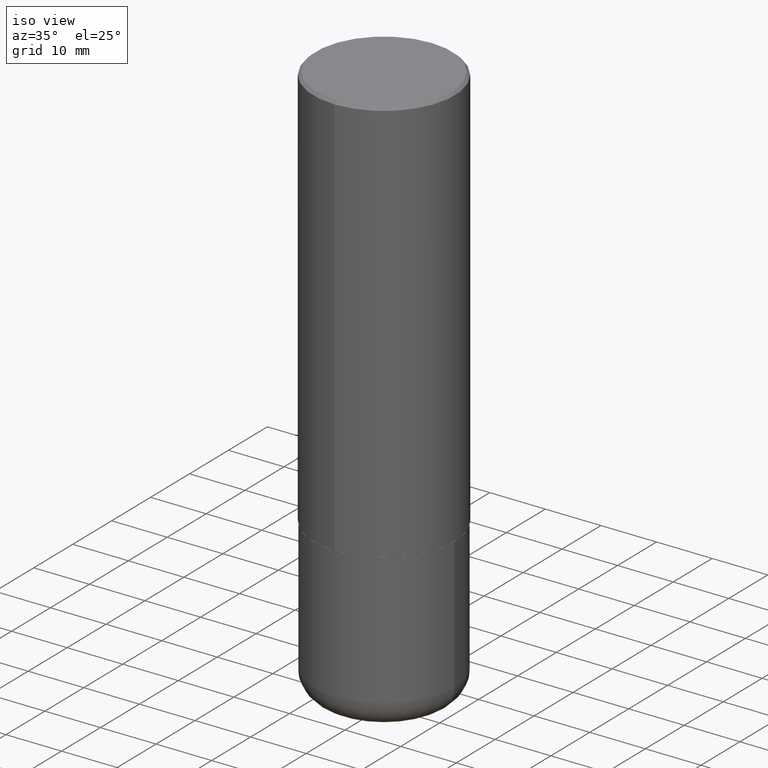
[diagram: clean part render]
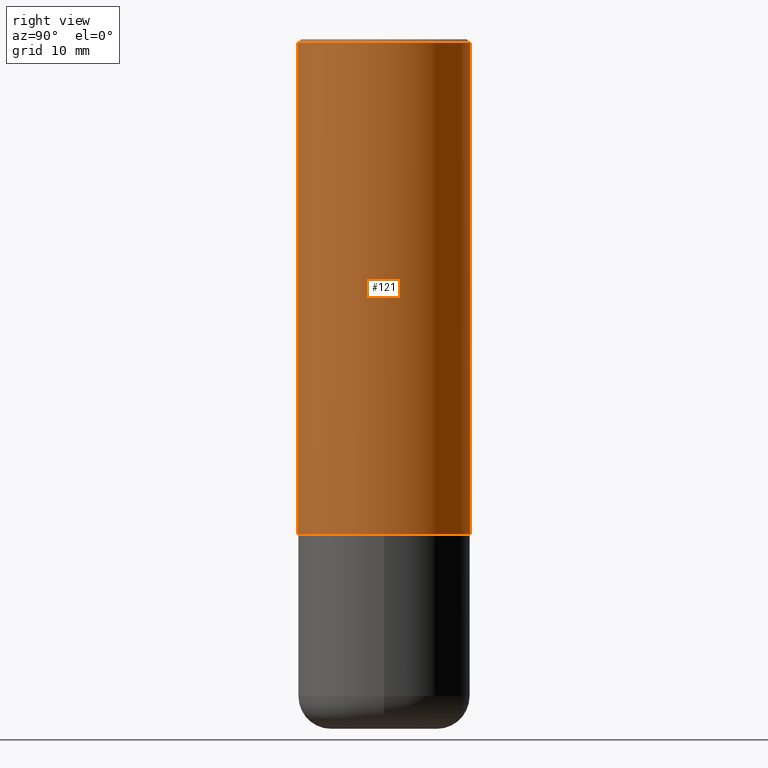
[diagram: tour spotlight — one face highlighted and labeled with its STEP entity id]
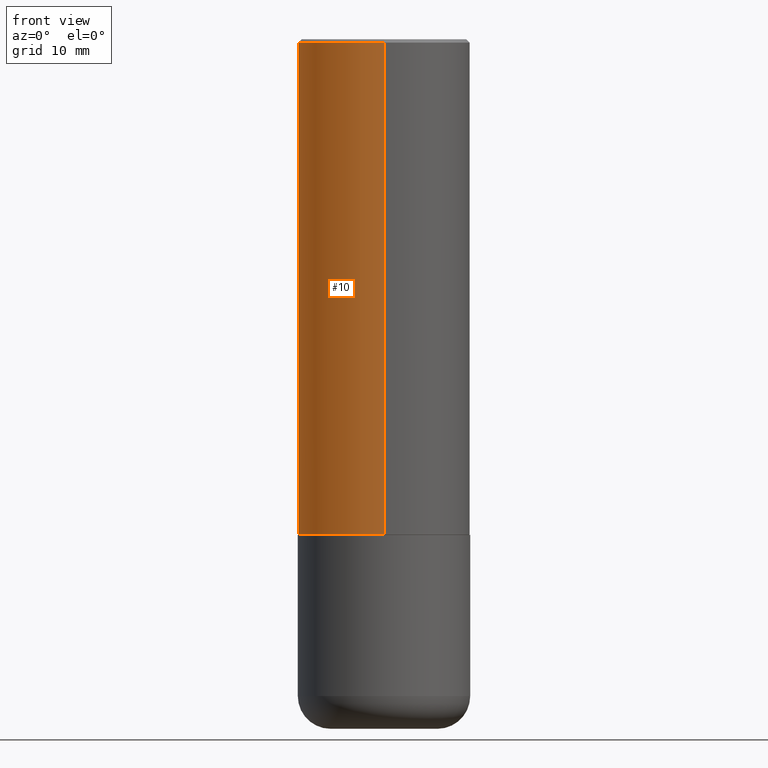
[diagram: tour spotlight — one face highlighted and labeled with its STEP entity id]
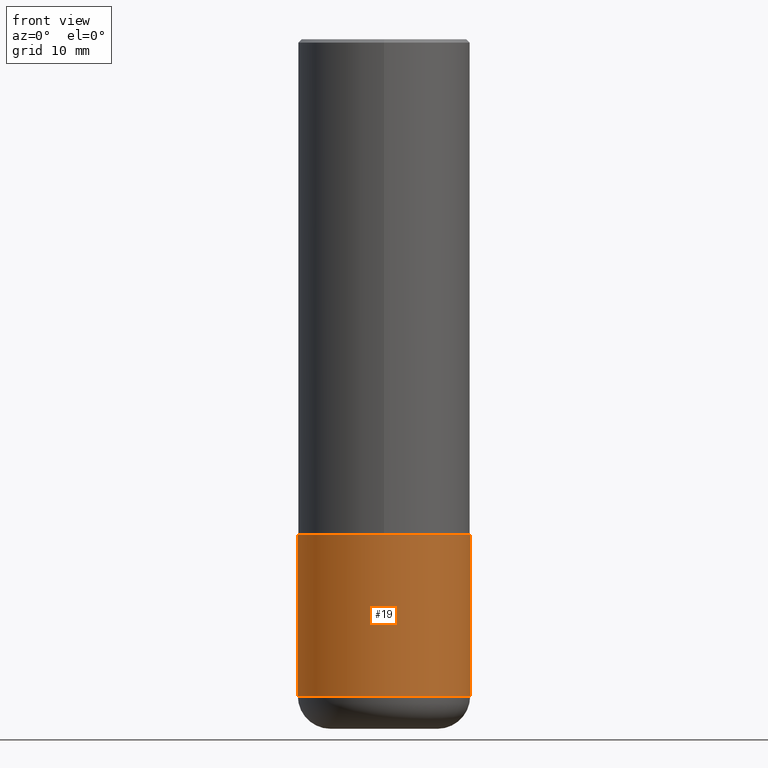
[diagram: tour spotlight — one face highlighted and labeled with its STEP entity id]
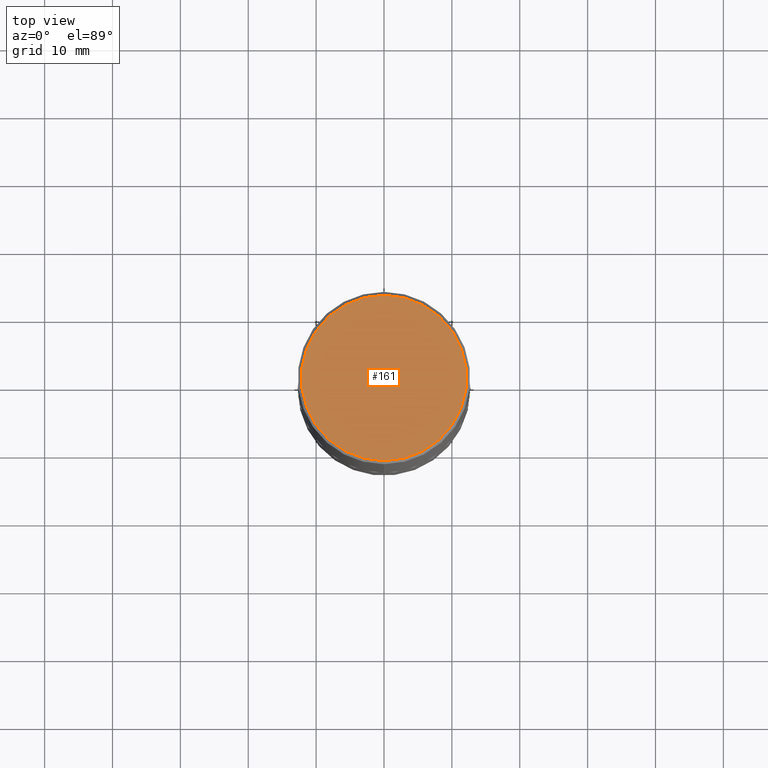
[diagram: tour spotlight — one face highlighted and labeled with its STEP entity id]
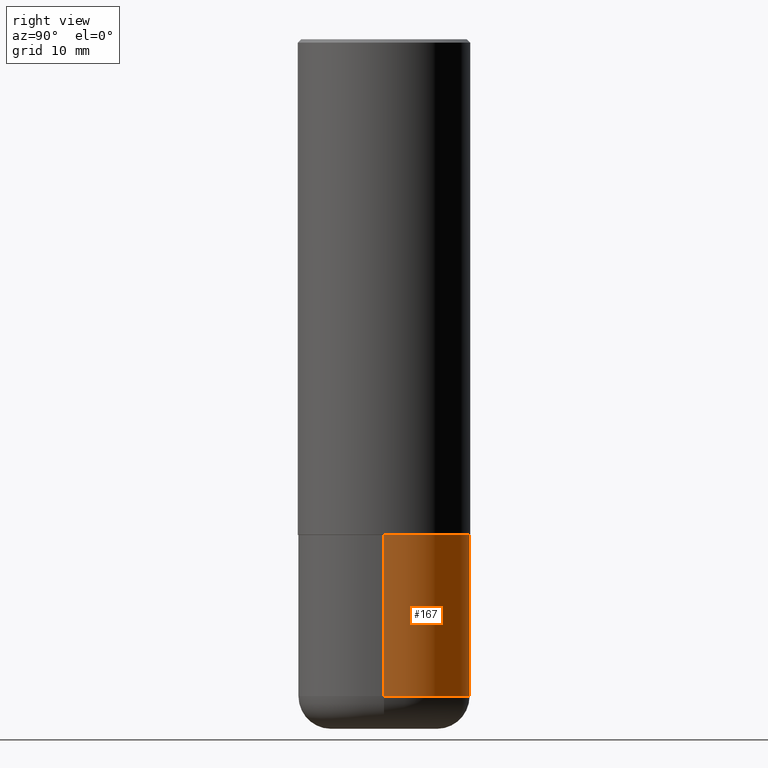
[diagram: tour spotlight — one face highlighted and labeled with its STEP entity id]
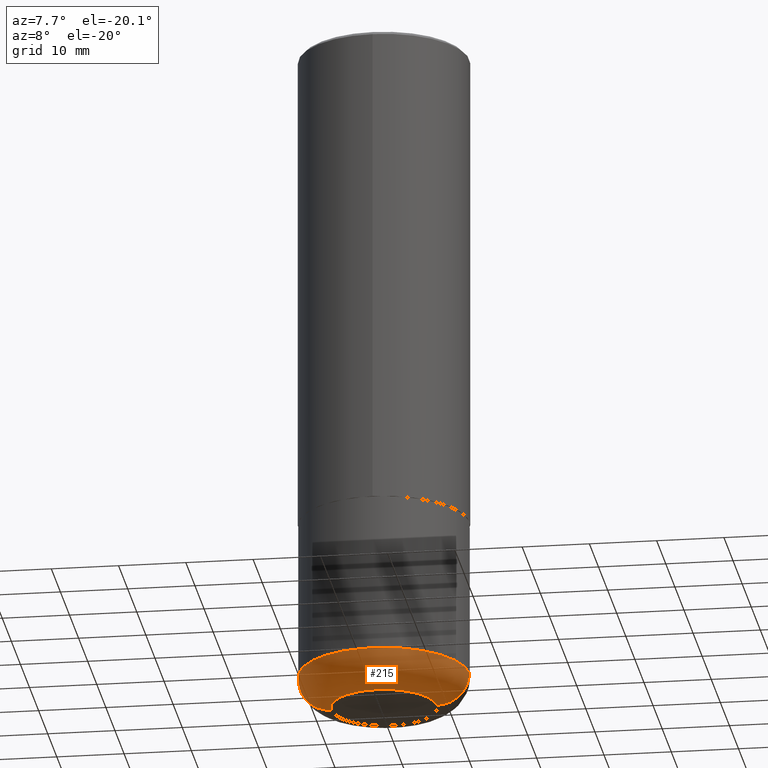
[diagram: tour spotlight — one face highlighted and labeled with its STEP entity id]
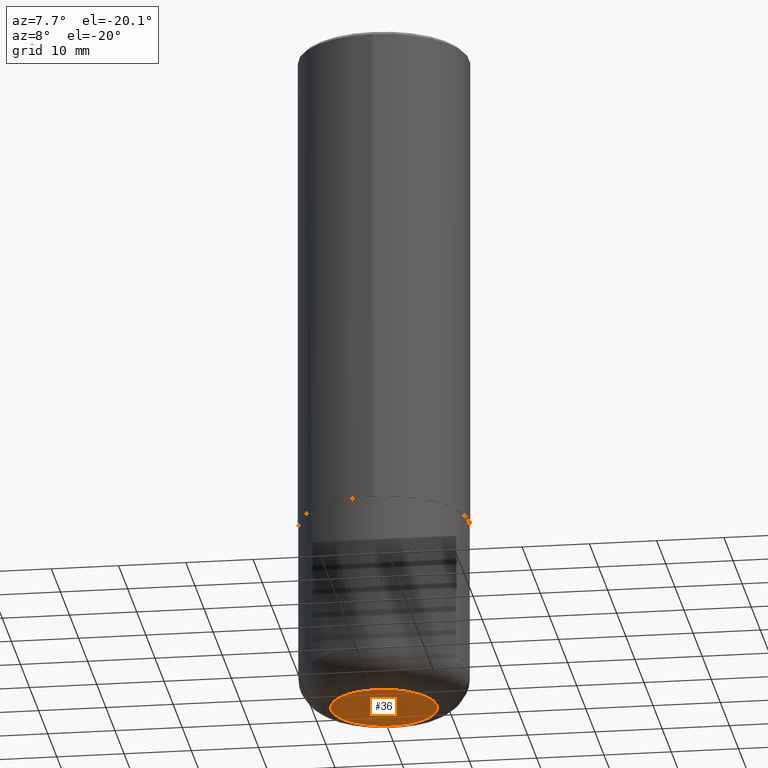
[diagram: tour spotlight — one face highlighted and labeled with its STEP entity id]
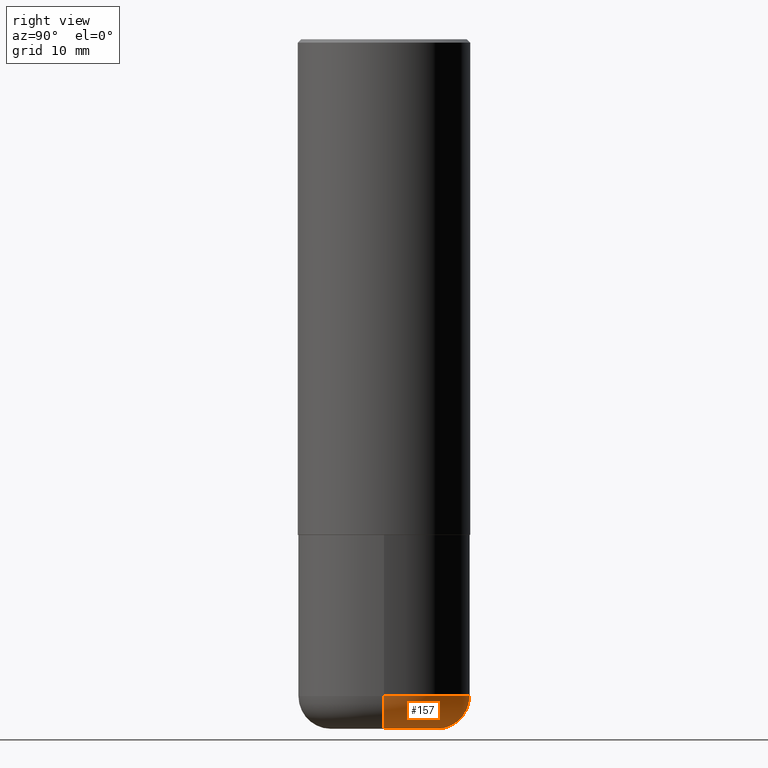
[diagram: tour spotlight — one face highlighted and labeled with its STEP entity id]
A machine part: a face-by-face anatomy tour. The part has 14 B-rep faces; the first image is the clean iso view, then the 8 largest visible faces are spotlighted one at a time (largest first), each with its STEP entity span.

Face 1 — right view, entity #121. In plain terms, the highlighted cylindrical surface (partial cylindrical patch) has radius 12.7 mm, axis along (-0, 0, 1).
Definition (entity closure, byte-faithful):
#4 = FACE_OUTER_BOUND ( 'NONE', #118, .T. ) ;
#5 = ORIENTED_EDGE ( 'NONE', *, *, #134, .F. ) ;
#7 = ORIENTED_EDGE ( 'NONE', *, *, #237, .T. ) ;
#22 = CARTESIAN_POINT ( 'NONE',  ( 7.027459789203708394E-29, -1.003568815996185455E-14, -2.874000000000000110 ) ) ;
#27 = EDGE_CURVE ( 'NONE', #187, #400, #97, .T. ) ;
#29 = CIRCLE ( 'NONE', #149, 0.5000000000000001110 ) ;
#38 = CARTESIAN_POINT ( 'NONE',  ( 3.552713678800538006E-15, 0.4999999999999903411, -2.874000000000001442 ) ) ;
#51 = ORIENTED_EDGE ( 'NONE', *, *, #27, .T. ) ;
#87 = VERTEX_POINT ( 'NONE', #384 ) ;
#92 = ORIENTED_EDGE ( 'NONE', *, *, #333, .F. ) ;
#94 = CIRCLE ( 'NONE', #412, 0.5000000000000003331 ) ;
#97 = LINE ( 'NONE', #320, #234 ) ;
#101 = DIRECTION ( 'NONE',  ( -2.445184338623420072E-29, 3.491888712582412558E-15, 1.000000000000000000 ) ) ;
#118 = EDGE_LOOP ( 'NONE', ( #7, #51, #5, #92 ) ) ;
#121 = ADVANCED_FACE ( 'NONE', ( #4 ), #338, .T. ) ;
#133 = DIRECTION ( 'NONE',  ( -6.982962677686265922E-15, -1.000000000000000000, 3.491888712582411769E-15 ) ) ;
#134 = EDGE_CURVE ( 'NONE', #277, #400, #29, .T. ) ;
#149 = AXIS2_PLACEMENT_3D ( 'NONE', #387, #300, #265 ) ;
#151 = CARTESIAN_POINT ( 'NONE',  ( -3.430248998885765387E-15, -0.5000000000000001110, -0.01999999999999835937 ) ) ;
#179 = DIRECTION ( 'NONE',  ( -6.982962677686265922E-15, -1.000000000000000000, 3.278217592397113496E-15 ) ) ;
#187 = VERTEX_POINT ( 'NONE', #38 ) ;
#216 = CARTESIAN_POINT ( 'NONE',  ( 3.491481338843133750E-15, 0.5000000000000000000, -0.02000000000000185310 ) ) ;
#234 = VECTOR ( 'NONE', #101, 39.37007874015748143 ) ;
#237 = EDGE_CURVE ( 'NONE', #87, #187, #94, .T. ) ;
#265 = DIRECTION ( 'NONE',  ( -6.982962677686265133E-15, -1.000000000000000000, 3.491643216902135619E-15 ) ) ;
#267 = DIRECTION ( 'NONE',  ( -2.445184338623419792E-29, 3.491888712582412164E-15, 1.000000000000000000 ) ) ;
#277 = VERTEX_POINT ( 'NONE', #151 ) ;
#300 = DIRECTION ( 'NONE',  ( -2.445184338623419792E-29, 3.491888712582412164E-15, 1.000000000000000000 ) ) ;
#301 = CARTESIAN_POINT ( 'NONE',  ( 0.000000000000000000, 0.000000000000000000, 0.000000000000000000 ) ) ;
#303 = DIRECTION ( 'NONE',  ( -2.445184338623419792E-29, 3.491888712582412164E-15, 1.000000000000000000 ) ) ;
#310 = CARTESIAN_POINT ( 'NONE',  ( -3.491481338843134539E-15, -0.5000000000000002220, 1.745944356291206674E-15 ) ) ;
#314 = DIRECTION ( 'NONE',  ( -2.445184338623420072E-29, 3.491888712582412558E-15, 1.000000000000000000 ) ) ;
#320 = CARTESIAN_POINT ( 'NONE',  ( 3.552713678800501718E-15, 0.5000000000000002220, -1.745944356291206674E-15 ) ) ;
#333 = EDGE_CURVE ( 'NONE', #87, #277, #399, .T. ) ;
#338 = CYLINDRICAL_SURFACE ( 'NONE', #396, 0.5000000000000002220 ) ;
#384 = CARTESIAN_POINT ( 'NONE',  ( -3.491481338843065119E-15, -0.5000000000000103251, -2.873999999999998334 ) ) ;
#387 = CARTESIAN_POINT ( 'NONE',  ( 4.890368677246865823E-31, -6.983777425164860418E-17, -0.02000000000000010797 ) ) ;
#396 = AXIS2_PLACEMENT_3D ( 'NONE', #301, #267, #133 ) ;
#399 = LINE ( 'NONE', #310, #417 ) ;
#400 = VERTEX_POINT ( 'NONE', #216 ) ;
#412 = AXIS2_PLACEMENT_3D ( 'NONE', #22, #303, #179 ) ;
#417 = VECTOR ( 'NONE', #314, 39.37007874015748143 ) ;

Face 2 — front view, entity #10. In plain terms, the highlighted cylindrical surface (partial cylindrical patch) has radius 12.7 mm, axis along (-0, 0, 1).
Definition (entity closure, byte-faithful):
#10 = ADVANCED_FACE ( 'NONE', ( #313 ), #322, .T. ) ;
#15 = CARTESIAN_POINT ( 'NONE',  ( 4.890368677246865823E-31, -6.983777425164860418E-17, -0.02000000000000010797 ) ) ;
#27 = EDGE_CURVE ( 'NONE', #187, #400, #97, .T. ) ;
#30 = CARTESIAN_POINT ( 'NONE',  ( 0.000000000000000000, 0.000000000000000000, 0.000000000000000000 ) ) ;
#38 = CARTESIAN_POINT ( 'NONE',  ( 3.552713678800538006E-15, 0.4999999999999903411, -2.874000000000001442 ) ) ;
#87 = VERTEX_POINT ( 'NONE', #384 ) ;
#97 = LINE ( 'NONE', #320, #234 ) ;
#101 = DIRECTION ( 'NONE',  ( -2.445184338623420072E-29, 3.491888712582412558E-15, 1.000000000000000000 ) ) ;
#112 = DIRECTION ( 'NONE',  ( -2.445184338623419792E-29, 3.491888712582412164E-15, 1.000000000000000000 ) ) ;
#142 = AXIS2_PLACEMENT_3D ( 'NONE', #210, #340, #282 ) ;
#146 = ORIENTED_EDGE ( 'NONE', *, *, #27, .F. ) ;
#151 = CARTESIAN_POINT ( 'NONE',  ( -3.430248998885765387E-15, -0.5000000000000001110, -0.01999999999999835937 ) ) ;
#152 = ORIENTED_EDGE ( 'NONE', *, *, #370, .F. ) ;
#163 = CIRCLE ( 'NONE', #142, 0.5000000000000003331 ) ;
#184 = ORIENTED_EDGE ( 'NONE', *, *, #333, .T. ) ;
#187 = VERTEX_POINT ( 'NONE', #38 ) ;
#194 = DIRECTION ( 'NONE',  ( -2.445184338623419792E-29, 3.491888712582412164E-15, 1.000000000000000000 ) ) ;
#198 = AXIS2_PLACEMENT_3D ( 'NONE', #30, #194, #225 ) ;
#210 = CARTESIAN_POINT ( 'NONE',  ( 7.027459789203708394E-29, -1.003568815996185455E-14, -2.874000000000000110 ) ) ;
#216 = CARTESIAN_POINT ( 'NONE',  ( 3.491481338843133750E-15, 0.5000000000000000000, -0.02000000000000185310 ) ) ;
#225 = DIRECTION ( 'NONE',  ( -6.982962677686265922E-15, -1.000000000000000000, 3.491888712582411769E-15 ) ) ;
#234 = VECTOR ( 'NONE', #101, 39.37007874015748143 ) ;
#235 = AXIS2_PLACEMENT_3D ( 'NONE', #15, #112, #351 ) ;
#252 = CIRCLE ( 'NONE', #235, 0.5000000000000001110 ) ;
#270 = EDGE_CURVE ( 'NONE', #187, #87, #163, .T. ) ;
#277 = VERTEX_POINT ( 'NONE', #151 ) ;
#282 = DIRECTION ( 'NONE',  ( -6.982962677686265922E-15, -1.000000000000000000, 3.278217592397113496E-15 ) ) ;
#310 = CARTESIAN_POINT ( 'NONE',  ( -3.491481338843134539E-15, -0.5000000000000002220, 1.745944356291206674E-15 ) ) ;
#311 = EDGE_LOOP ( 'NONE', ( #146, #366, #184, #152 ) ) ;
#313 = FACE_OUTER_BOUND ( 'NONE', #311, .T. ) ;
#314 = DIRECTION ( 'NONE',  ( -2.445184338623420072E-29, 3.491888712582412558E-15, 1.000000000000000000 ) ) ;
#320 = CARTESIAN_POINT ( 'NONE',  ( 3.552713678800501718E-15, 0.5000000000000002220, -1.745944356291206674E-15 ) ) ;
#322 = CYLINDRICAL_SURFACE ( 'NONE', #198, 0.5000000000000002220 ) ;
#333 = EDGE_CURVE ( 'NONE', #87, #277, #399, .T. ) ;
#340 = DIRECTION ( 'NONE',  ( -2.445184338623419792E-29, 3.491888712582412164E-15, 1.000000000000000000 ) ) ;
#351 = DIRECTION ( 'NONE',  ( -6.982962677686265133E-15, -1.000000000000000000, 3.491643216902135619E-15 ) ) ;
#366 = ORIENTED_EDGE ( 'NONE', *, *, #270, .T. ) ;
#370 = EDGE_CURVE ( 'NONE', #400, #277, #252, .T. ) ;
#384 = CARTESIAN_POINT ( 'NONE',  ( -3.491481338843065119E-15, -0.5000000000000103251, -2.873999999999998334 ) ) ;
#399 = LINE ( 'NONE', #310, #417 ) ;
#400 = VERTEX_POINT ( 'NONE', #216 ) ;
#417 = VECTOR ( 'NONE', #314, 39.37007874015748143 ) ;

Face 3 — front view, entity #19. In plain terms, the highlighted cylindrical surface (partial cylindrical patch) has radius 12.7 mm, axis along (-0, 0, 1).
Definition (entity closure, byte-faithful):
#6 = AXIS2_PLACEMENT_3D ( 'NONE', #39, #392, #105 ) ;
#19 = ADVANCED_FACE ( 'NONE', ( #127 ), #257, .T. ) ;
#26 = LINE ( 'NONE', #35, #342 ) ;
#33 = DIRECTION ( 'NONE',  ( -2.445468806185136877E-29, 3.491481338843145188E-15, 1.000000000000000000 ) ) ;
#35 = CARTESIAN_POINT ( 'NONE',  ( 0.5000000000000000000, -3.491481338843133355E-15, 2.438088387897967896E-29 ) ) ;
#39 = CARTESIAN_POINT ( 'NONE',  ( 9.317236151565370389E-29, -1.330254390099238573E-14, -3.810000000000000053 ) ) ;
#44 = VERTEX_POINT ( 'NONE', #360 ) ;
#64 = EDGE_CURVE ( 'NONE', #175, #113, #227, .T. ) ;
#76 = EDGE_CURVE ( 'NONE', #409, #44, #26, .T. ) ;
#79 = DIRECTION ( 'NONE',  ( 1.000000000000000000, -6.982962677686266711E-15, 0.000000000000000000 ) ) ;
#83 = ORIENTED_EDGE ( 'NONE', *, *, #76, .T. ) ;
#99 = CIRCLE ( 'NONE', #288, 0.5000000000000000000 ) ;
#105 = DIRECTION ( 'NONE',  ( 1.000000000000000000, -6.982962677686266711E-15, 0.000000000000000000 ) ) ;
#108 = AXIS2_PLACEMENT_3D ( 'NONE', #413, #196, #232 ) ;
#113 = VERTEX_POINT ( 'NONE', #136 ) ;
#125 = CARTESIAN_POINT ( 'NONE',  ( -0.5000000000000000000, 3.552713678800500929E-15, -2.459467545127452891E-29 ) ) ;
#127 = FACE_OUTER_BOUND ( 'NONE', #379, .T. ) ;
#136 = CARTESIAN_POINT ( 'NONE',  ( -0.5000000000000000000, -8.117562696282713489E-15, -2.875000000000000000 ) ) ;
#162 = VECTOR ( 'NONE', #361, 39.37007874015748143 ) ;
#175 = VERTEX_POINT ( 'NONE', #332 ) ;
#178 = EDGE_CURVE ( 'NONE', #175, #409, #294, .T. ) ;
#196 = DIRECTION ( 'NONE',  ( -2.445468806185136597E-29, 3.491481338843145583E-15, 1.000000000000000000 ) ) ;
#227 = LINE ( 'NONE', #125, #162 ) ;
#232 = DIRECTION ( 'NONE',  ( 1.000000000000000000, -6.982962677686266711E-15, 4.876176775795935793E-29 ) ) ;
#240 = DIRECTION ( 'NONE',  ( -2.445468806185136597E-29, 3.491481338843145583E-15, 1.000000000000000000 ) ) ;
#248 = ORIENTED_EDGE ( 'NONE', *, *, #178, .T. ) ;
#249 = CARTESIAN_POINT ( 'NONE',  ( 7.030722817782267716E-29, -1.003800884917404311E-14, -2.875000000000000000 ) ) ;
#257 = CYLINDRICAL_SURFACE ( 'NONE', #108, 0.5000000000000000000 ) ;
#279 = ORIENTED_EDGE ( 'NONE', *, *, #64, .F. ) ;
#288 = AXIS2_PLACEMENT_3D ( 'NONE', #249, #240, #79 ) ;
#294 = CIRCLE ( 'NONE', #6, 0.5000000000000000000 ) ;
#332 = CARTESIAN_POINT ( 'NONE',  ( -0.4999999999999998335, -9.749830222191884801E-15, -3.810000000000000053 ) ) ;
#342 = VECTOR ( 'NONE', #33, 39.37007874015748143 ) ;
#360 = CARTESIAN_POINT ( 'NONE',  ( 0.5000000000000000000, -1.352949018801717646E-14, -2.875000000000000000 ) ) ;
#361 = DIRECTION ( 'NONE',  ( -2.445468806185136877E-29, 3.491481338843145188E-15, 1.000000000000000000 ) ) ;
#373 = ORIENTED_EDGE ( 'NONE', *, *, #374, .F. ) ;
#374 = EDGE_CURVE ( 'NONE', #113, #44, #99, .T. ) ;
#379 = EDGE_LOOP ( 'NONE', ( #279, #248, #83, #373 ) ) ;
#385 = CARTESIAN_POINT ( 'NONE',  ( 0.4999999999999998335, -1.679402523983551751E-14, -3.810000000000000053 ) ) ;
#392 = DIRECTION ( 'NONE',  ( -2.445468806185136597E-29, 3.491481338843145583E-15, 1.000000000000000000 ) ) ;
#409 = VERTEX_POINT ( 'NONE', #385 ) ;
#413 = CARTESIAN_POINT ( 'NONE',  ( 0.000000000000000000, 0.000000000000000000, 0.000000000000000000 ) ) ;

Face 4 — top view, entity #161. In plain terms, the highlighted planar face has unit normal (0, -0, -1).
Definition (entity closure, byte-faithful):
#8 = DIRECTION ( 'NONE',  ( 2.445184338623419231E-29, -3.491888712582412558E-15, -1.000000000000000000 ) ) ;
#14 = ORIENTED_EDGE ( 'NONE', *, *, #165, .T. ) ;
#37 = CARTESIAN_POINT ( 'NONE',  ( 3.857019660645771864E-45, -5.508085097911161414E-31, -1.577394227388672604E-16 ) ) ;
#40 = DIRECTION ( 'NONE',  ( -6.982962677686265922E-15, -1.000000000000000000, 3.491888712582412164E-15 ) ) ;
#42 = AXIS2_PLACEMENT_3D ( 'NONE', #43, #8, #390 ) ;
#43 = CARTESIAN_POINT ( 'NONE',  ( 3.351822085289409125E-15, 0.4800000000000002043, -1.754976293408992439E-15 ) ) ;
#73 = PLANE ( 'NONE',  #42 ) ;
#80 = VERTEX_POINT ( 'NONE', #223 ) ;
#89 = EDGE_LOOP ( 'NONE', ( #284, #14 ) ) ;
#107 = EDGE_CURVE ( 'NONE', #214, #80, #191, .T. ) ;
#131 = DIRECTION ( 'NONE',  ( -6.982962677686265922E-15, -1.000000000000000000, 3.491888712582412164E-15 ) ) ;
#161 = ADVANCED_FACE ( 'NONE', ( #336 ), #73, .F. ) ;
#165 = EDGE_CURVE ( 'NONE', #80, #214, #316, .T. ) ;
#170 = DIRECTION ( 'NONE',  ( -2.445184338623419792E-29, 3.491888712582412164E-15, 1.000000000000000000 ) ) ;
#191 = CIRCLE ( 'NONE', #330, 0.4800000000000002043 ) ;
#202 = CARTESIAN_POINT ( 'NONE',  ( 3.857019660645771864E-45, -5.508085097911161414E-31, -1.577394227388672604E-16 ) ) ;
#214 = VERTEX_POINT ( 'NONE', #242 ) ;
#223 = CARTESIAN_POINT ( 'NONE',  ( -3.361644018908050450E-15, -0.4800000000000002043, 1.518367159300691351E-15 ) ) ;
#233 = DIRECTION ( 'NONE',  ( -2.445184338623419792E-29, 3.491888712582412164E-15, 1.000000000000000000 ) ) ;
#242 = CARTESIAN_POINT ( 'NONE',  ( 3.421651712066271635E-15, 0.4800000000000002043, -1.833846004778425872E-15 ) ) ;
#266 = AXIS2_PLACEMENT_3D ( 'NONE', #202, #170, #40 ) ;
#284 = ORIENTED_EDGE ( 'NONE', *, *, #107, .T. ) ;
#316 = CIRCLE ( 'NONE', #266, 0.4800000000000002043 ) ;
#330 = AXIS2_PLACEMENT_3D ( 'NONE', #37, #233, #131 ) ;
#336 = FACE_OUTER_BOUND ( 'NONE', #89, .T. ) ;
#390 = DIRECTION ( 'NONE',  ( 6.982962677686265922E-15, 1.000000000000000000, -3.491888712582412558E-15 ) ) ;

Face 5 — right view, entity #167. In plain terms, the highlighted cylindrical surface (partial cylindrical patch) has radius 12.7 mm, axis along (-0, 0, 1).
Definition (entity closure, byte-faithful):
#26 = LINE ( 'NONE', #35, #342 ) ;
#33 = DIRECTION ( 'NONE',  ( -2.445468806185136877E-29, 3.491481338843145188E-15, 1.000000000000000000 ) ) ;
#35 = CARTESIAN_POINT ( 'NONE',  ( 0.5000000000000000000, -3.491481338843133355E-15, 2.438088387897967896E-29 ) ) ;
#44 = VERTEX_POINT ( 'NONE', #360 ) ;
#48 = AXIS2_PLACEMENT_3D ( 'NONE', #260, #159, #290 ) ;
#64 = EDGE_CURVE ( 'NONE', #175, #113, #227, .T. ) ;
#69 = DIRECTION ( 'NONE',  ( -2.445468806185136597E-29, 3.491481338843145583E-15, 1.000000000000000000 ) ) ;
#76 = EDGE_CURVE ( 'NONE', #409, #44, #26, .T. ) ;
#78 = ORIENTED_EDGE ( 'NONE', *, *, #76, .F. ) ;
#81 = EDGE_CURVE ( 'NONE', #409, #175, #220, .T. ) ;
#85 = CIRCLE ( 'NONE', #262, 0.5000000000000000000 ) ;
#102 = CARTESIAN_POINT ( 'NONE',  ( 0.000000000000000000, 0.000000000000000000, 0.000000000000000000 ) ) ;
#113 = VERTEX_POINT ( 'NONE', #136 ) ;
#125 = CARTESIAN_POINT ( 'NONE',  ( -0.5000000000000000000, 3.552713678800500929E-15, -2.459467545127452891E-29 ) ) ;
#136 = CARTESIAN_POINT ( 'NONE',  ( -0.5000000000000000000, -8.117562696282713489E-15, -2.875000000000000000 ) ) ;
#140 = CYLINDRICAL_SURFACE ( 'NONE', #176, 0.5000000000000000000 ) ;
#144 = ORIENTED_EDGE ( 'NONE', *, *, #324, .F. ) ;
#159 = DIRECTION ( 'NONE',  ( -2.445468806185136597E-29, 3.491481338843145583E-15, 1.000000000000000000 ) ) ;
#162 = VECTOR ( 'NONE', #361, 39.37007874015748143 ) ;
#167 = ADVANCED_FACE ( 'NONE', ( #339 ), #140, .T. ) ;
#169 = ORIENTED_EDGE ( 'NONE', *, *, #81, .T. ) ;
#172 = DIRECTION ( 'NONE',  ( -2.445468806185136597E-29, 3.491481338843145583E-15, 1.000000000000000000 ) ) ;
#175 = VERTEX_POINT ( 'NONE', #332 ) ;
#176 = AXIS2_PLACEMENT_3D ( 'NONE', #102, #69, #334 ) ;
#218 = CARTESIAN_POINT ( 'NONE',  ( 7.030722817782267716E-29, -1.003800884917404311E-14, -2.875000000000000000 ) ) ;
#220 = CIRCLE ( 'NONE', #48, 0.5000000000000000000 ) ;
#227 = LINE ( 'NONE', #125, #162 ) ;
#260 = CARTESIAN_POINT ( 'NONE',  ( 9.317236151565370389E-29, -1.330254390099238573E-14, -3.810000000000000053 ) ) ;
#262 = AXIS2_PLACEMENT_3D ( 'NONE', #218, #172, #343 ) ;
#275 = ORIENTED_EDGE ( 'NONE', *, *, #64, .T. ) ;
#283 = EDGE_LOOP ( 'NONE', ( #169, #275, #144, #78 ) ) ;
#290 = DIRECTION ( 'NONE',  ( 1.000000000000000000, -6.982962677686266711E-15, 0.000000000000000000 ) ) ;
#324 = EDGE_CURVE ( 'NONE', #44, #113, #85, .T. ) ;
#332 = CARTESIAN_POINT ( 'NONE',  ( -0.4999999999999998335, -9.749830222191884801E-15, -3.810000000000000053 ) ) ;
#334 = DIRECTION ( 'NONE',  ( 1.000000000000000000, -6.982962677686266711E-15, 4.876176775795935793E-29 ) ) ;
#339 = FACE_OUTER_BOUND ( 'NONE', #283, .T. ) ;
#342 = VECTOR ( 'NONE', #33, 39.37007874015748143 ) ;
#343 = DIRECTION ( 'NONE',  ( 1.000000000000000000, -6.982962677686266711E-15, 0.000000000000000000 ) ) ;
#360 = CARTESIAN_POINT ( 'NONE',  ( 0.5000000000000000000, -1.352949018801717646E-14, -2.875000000000000000 ) ) ;
#361 = DIRECTION ( 'NONE',  ( -2.445468806185136877E-29, 3.491481338843145188E-15, 1.000000000000000000 ) ) ;
#385 = CARTESIAN_POINT ( 'NONE',  ( 0.4999999999999998335, -1.679402523983551751E-14, -3.810000000000000053 ) ) ;
#409 = VERTEX_POINT ( 'NONE', #385 ) ;

Face 6 — auxiliary view, entity #215. In plain terms, the highlighted toroidal blend (fillet) surface has major radius 7.874 mm and minor (blend) radius 4.826 mm.
Definition (entity closure, byte-faithful):
#6 = AXIS2_PLACEMENT_3D ( 'NONE', #39, #392, #105 ) ;
#13 = DIRECTION ( 'NONE',  ( -2.445468806185136597E-29, 3.491481338843145583E-15, 1.000000000000000000 ) ) ;
#21 = AXIS2_PLACEMENT_3D ( 'NONE', #369, #82, #372 ) ;
#39 = CARTESIAN_POINT ( 'NONE',  ( 9.317236151565370389E-29, -1.330254390099238573E-14, -3.810000000000000053 ) ) ;
#50 = CARTESIAN_POINT ( 'NONE',  ( 0.3099999999999999978, -1.613064378545532091E-14, -3.999999999999999556 ) ) ;
#60 = ORIENTED_EDGE ( 'NONE', *, *, #239, .T. ) ;
#72 = EDGE_CURVE ( 'NONE', #115, #175, #352, .T. ) ;
#82 = DIRECTION ( 'NONE',  ( -6.982962677686266711E-15, -1.000000000000000000, 3.491481338843145583E-15 ) ) ;
#103 = CIRCLE ( 'NONE', #238, 0.3099999999999999978 ) ;
#105 = DIRECTION ( 'NONE',  ( 1.000000000000000000, -6.982962677686266711E-15, 0.000000000000000000 ) ) ;
#111 = ORIENTED_EDGE ( 'NONE', *, *, #178, .F. ) ;
#114 = CARTESIAN_POINT ( 'NONE',  ( 9.781875224740545266E-29, -1.396592535537258075E-14, -3.999999999999999556 ) ) ;
#115 = VERTEX_POINT ( 'NONE', #297 ) ;
#117 = DIRECTION ( 'NONE',  ( 1.000000000000000000, -6.982962677686263555E-15, 0.000000000000000000 ) ) ;
#120 = ORIENTED_EDGE ( 'NONE', *, *, #72, .F. ) ;
#123 = DIRECTION ( 'NONE',  ( -1.000000000000000000, 7.105427357600999492E-15, 0.000000000000000000 ) ) ;
#147 = DIRECTION ( 'NONE',  ( 1.000000000000000000, -6.982962677686267499E-15, 4.883557194083114022E-29 ) ) ;
#174 = AXIS2_PLACEMENT_3D ( 'NONE', #358, #354, #123 ) ;
#175 = VERTEX_POINT ( 'NONE', #332 ) ;
#178 = EDGE_CURVE ( 'NONE', #175, #409, #294, .T. ) ;
#207 = DIRECTION ( 'NONE',  ( -2.445468806185136597E-29, 3.491481338843145583E-15, 1.000000000000000000 ) ) ;
#209 = VERTEX_POINT ( 'NONE', #50 ) ;
#215 = ADVANCED_FACE ( 'NONE', ( #398 ), #246, .T. ) ;
#238 = AXIS2_PLACEMENT_3D ( 'NONE', #114, #13, #117 ) ;
#239 = EDGE_CURVE ( 'NONE', #209, #409, #272, .T. ) ;
#246 = TOROIDAL_SURFACE ( 'NONE', #389, 0.3099999999999999978, 0.1899999999999996692 ) ;
#250 = ORIENTED_EDGE ( 'NONE', *, *, #381, .T. ) ;
#269 = EDGE_LOOP ( 'NONE', ( #120, #250, #60, #111 ) ) ;
#272 = CIRCLE ( 'NONE', #21, 0.1899999999999996692 ) ;
#294 = CIRCLE ( 'NONE', #6, 0.5000000000000000000 ) ;
#297 = CARTESIAN_POINT ( 'NONE',  ( -0.3099999999999999978, -1.075653654835407967E-14, -3.999999999999999556 ) ) ;
#312 = CARTESIAN_POINT ( 'NONE',  ( 9.317236151565370389E-29, -1.330254390099238573E-14, -3.810000000000000053 ) ) ;
#332 = CARTESIAN_POINT ( 'NONE',  ( -0.4999999999999998335, -9.749830222191884801E-15, -3.810000000000000053 ) ) ;
#352 = CIRCLE ( 'NONE', #174, 0.1899999999999996692 ) ;
#354 = DIRECTION ( 'NONE',  ( 7.105427357601001859E-15, 1.000000000000000000, -3.491481338843145583E-15 ) ) ;
#358 = CARTESIAN_POINT ( 'NONE',  ( -0.3099999999999999978, -1.109986142013607478E-14, -3.810000000000000053 ) ) ;
#369 = CARTESIAN_POINT ( 'NONE',  ( 0.3099999999999999978, -1.546726233107512746E-14, -3.810000000000000053 ) ) ;
#372 = DIRECTION ( 'NONE',  ( 1.000000000000000000, -6.982962677686262766E-15, 0.000000000000000000 ) ) ;
#381 = EDGE_CURVE ( 'NONE', #115, #209, #103, .T. ) ;
#385 = CARTESIAN_POINT ( 'NONE',  ( 0.4999999999999998335, -1.679402523983551751E-14, -3.810000000000000053 ) ) ;
#389 = AXIS2_PLACEMENT_3D ( 'NONE', #312, #207, #147 ) ;
#392 = DIRECTION ( 'NONE',  ( -2.445468806185136597E-29, 3.491481338843145583E-15, 1.000000000000000000 ) ) ;
#398 = FACE_OUTER_BOUND ( 'NONE', #269, .T. ) ;
#409 = VERTEX_POINT ( 'NONE', #385 ) ;

Face 7 — auxiliary view, entity #36. In plain terms, the highlighted planar face has unit normal (0, -0, -1).
Definition (entity closure, byte-faithful):
#2 = DIRECTION ( 'NONE',  ( 1.000000000000000000, -6.982962677686263555E-15, 0.000000000000000000 ) ) ;
#11 = CIRCLE ( 'NONE', #228, 0.3099999999999999978 ) ;
#13 = DIRECTION ( 'NONE',  ( -2.445468806185136597E-29, 3.491481338843145583E-15, 1.000000000000000000 ) ) ;
#16 = EDGE_LOOP ( 'NONE', ( #344, #217 ) ) ;
#36 = ADVANCED_FACE ( 'NONE', ( #410 ), #380, .T. ) ;
#50 = CARTESIAN_POINT ( 'NONE',  ( 0.3099999999999999978, -1.613064378545532091E-14, -3.999999999999999556 ) ) ;
#103 = CIRCLE ( 'NONE', #238, 0.3099999999999999978 ) ;
#114 = CARTESIAN_POINT ( 'NONE',  ( 9.781875224740545266E-29, -1.396592535537258075E-14, -3.999999999999999556 ) ) ;
#115 = VERTEX_POINT ( 'NONE', #297 ) ;
#117 = DIRECTION ( 'NONE',  ( 1.000000000000000000, -6.982962677686263555E-15, 0.000000000000000000 ) ) ;
#166 = DIRECTION ( 'NONE',  ( -2.445468806185136597E-29, 3.491481338843145583E-15, 1.000000000000000000 ) ) ;
#197 = EDGE_CURVE ( 'NONE', #209, #115, #11, .T. ) ;
#209 = VERTEX_POINT ( 'NONE', #50 ) ;
#217 = ORIENTED_EDGE ( 'NONE', *, *, #381, .F. ) ;
#228 = AXIS2_PLACEMENT_3D ( 'NONE', #364, #166, #2 ) ;
#238 = AXIS2_PLACEMENT_3D ( 'NONE', #114, #13, #117 ) ;
#293 = AXIS2_PLACEMENT_3D ( 'NONE', #326, #382, #328 ) ;
#297 = CARTESIAN_POINT ( 'NONE',  ( -0.3099999999999999978, -1.075653654835407967E-14, -3.999999999999999556 ) ) ;
#326 = CARTESIAN_POINT ( 'NONE',  ( 1.470481524561013617E-28, -6.915995049142223093E-15, -4.000000000000000000 ) ) ;
#328 = DIRECTION ( 'NONE',  ( -1.000000000000000000, 6.982962677686265922E-15, -4.876176775795935793E-29 ) ) ;
#344 = ORIENTED_EDGE ( 'NONE', *, *, #197, .F. ) ;
#364 = CARTESIAN_POINT ( 'NONE',  ( 9.781875224740545266E-29, -1.396592535537258075E-14, -3.999999999999999556 ) ) ;
#380 = PLANE ( 'NONE',  #293 ) ;
#381 = EDGE_CURVE ( 'NONE', #115, #209, #103, .T. ) ;
#382 = DIRECTION ( 'NONE',  ( 2.438088387897960049E-29, -3.491481338843145188E-15, -1.000000000000000000 ) ) ;
#410 = FACE_OUTER_BOUND ( 'NONE', #16, .T. ) ;

Face 8 — right view, entity #157. In plain terms, the highlighted toroidal blend (fillet) surface has major radius 7.874 mm and minor (blend) radius 4.826 mm.
Definition (entity closure, byte-faithful):
#2 = DIRECTION ( 'NONE',  ( 1.000000000000000000, -6.982962677686263555E-15, 0.000000000000000000 ) ) ;
#11 = CIRCLE ( 'NONE', #228, 0.3099999999999999978 ) ;
#21 = AXIS2_PLACEMENT_3D ( 'NONE', #369, #82, #372 ) ;
#48 = AXIS2_PLACEMENT_3D ( 'NONE', #260, #159, #290 ) ;
#49 = AXIS2_PLACEMENT_3D ( 'NONE', #77, #200, #395 ) ;
#50 = CARTESIAN_POINT ( 'NONE',  ( 0.3099999999999999978, -1.613064378545532091E-14, -3.999999999999999556 ) ) ;
#57 = ORIENTED_EDGE ( 'NONE', *, *, #81, .F. ) ;
#72 = EDGE_CURVE ( 'NONE', #115, #175, #352, .T. ) ;
#77 = CARTESIAN_POINT ( 'NONE',  ( 9.317236151565370389E-29, -1.330254390099238573E-14, -3.810000000000000053 ) ) ;
#81 = EDGE_CURVE ( 'NONE', #409, #175, #220, .T. ) ;
#82 = DIRECTION ( 'NONE',  ( -6.982962677686266711E-15, -1.000000000000000000, 3.491481338843145583E-15 ) ) ;
#115 = VERTEX_POINT ( 'NONE', #297 ) ;
#123 = DIRECTION ( 'NONE',  ( -1.000000000000000000, 7.105427357600999492E-15, 0.000000000000000000 ) ) ;
#157 = ADVANCED_FACE ( 'NONE', ( #206 ), #298, .T. ) ;
#159 = DIRECTION ( 'NONE',  ( -2.445468806185136597E-29, 3.491481338843145583E-15, 1.000000000000000000 ) ) ;
#166 = DIRECTION ( 'NONE',  ( -2.445468806185136597E-29, 3.491481338843145583E-15, 1.000000000000000000 ) ) ;
#174 = AXIS2_PLACEMENT_3D ( 'NONE', #358, #354, #123 ) ;
#175 = VERTEX_POINT ( 'NONE', #332 ) ;
#180 = EDGE_LOOP ( 'NONE', ( #308, #347, #57, #350 ) ) ;
#197 = EDGE_CURVE ( 'NONE', #209, #115, #11, .T. ) ;
#200 = DIRECTION ( 'NONE',  ( -2.445468806185136597E-29, 3.491481338843145583E-15, 1.000000000000000000 ) ) ;
#206 = FACE_OUTER_BOUND ( 'NONE', #180, .T. ) ;
#209 = VERTEX_POINT ( 'NONE', #50 ) ;
#220 = CIRCLE ( 'NONE', #48, 0.5000000000000000000 ) ;
#228 = AXIS2_PLACEMENT_3D ( 'NONE', #364, #166, #2 ) ;
#239 = EDGE_CURVE ( 'NONE', #209, #409, #272, .T. ) ;
#260 = CARTESIAN_POINT ( 'NONE',  ( 9.317236151565370389E-29, -1.330254390099238573E-14, -3.810000000000000053 ) ) ;
#272 = CIRCLE ( 'NONE', #21, 0.1899999999999996692 ) ;
#290 = DIRECTION ( 'NONE',  ( 1.000000000000000000, -6.982962677686266711E-15, 0.000000000000000000 ) ) ;
#297 = CARTESIAN_POINT ( 'NONE',  ( -0.3099999999999999978, -1.075653654835407967E-14, -3.999999999999999556 ) ) ;
#298 = TOROIDAL_SURFACE ( 'NONE', #49, 0.3099999999999999978, 0.1899999999999996692 ) ;
#308 = ORIENTED_EDGE ( 'NONE', *, *, #197, .T. ) ;
#332 = CARTESIAN_POINT ( 'NONE',  ( -0.4999999999999998335, -9.749830222191884801E-15, -3.810000000000000053 ) ) ;
#347 = ORIENTED_EDGE ( 'NONE', *, *, #72, .T. ) ;
#350 = ORIENTED_EDGE ( 'NONE', *, *, #239, .F. ) ;
#352 = CIRCLE ( 'NONE', #174, 0.1899999999999996692 ) ;
#354 = DIRECTION ( 'NONE',  ( 7.105427357601001859E-15, 1.000000000000000000, -3.491481338843145583E-15 ) ) ;
#358 = CARTESIAN_POINT ( 'NONE',  ( -0.3099999999999999978, -1.109986142013607478E-14, -3.810000000000000053 ) ) ;
#364 = CARTESIAN_POINT ( 'NONE',  ( 9.781875224740545266E-29, -1.396592535537258075E-14, -3.999999999999999556 ) ) ;
#369 = CARTESIAN_POINT ( 'NONE',  ( 0.3099999999999999978, -1.546726233107512746E-14, -3.810000000000000053 ) ) ;
#372 = DIRECTION ( 'NONE',  ( 1.000000000000000000, -6.982962677686262766E-15, 0.000000000000000000 ) ) ;
#385 = CARTESIAN_POINT ( 'NONE',  ( 0.4999999999999998335, -1.679402523983551751E-14, -3.810000000000000053 ) ) ;
#395 = DIRECTION ( 'NONE',  ( 1.000000000000000000, -6.982962677686267499E-15, 4.883557194083114022E-29 ) ) ;
#409 = VERTEX_POINT ( 'NONE', #385 ) ;